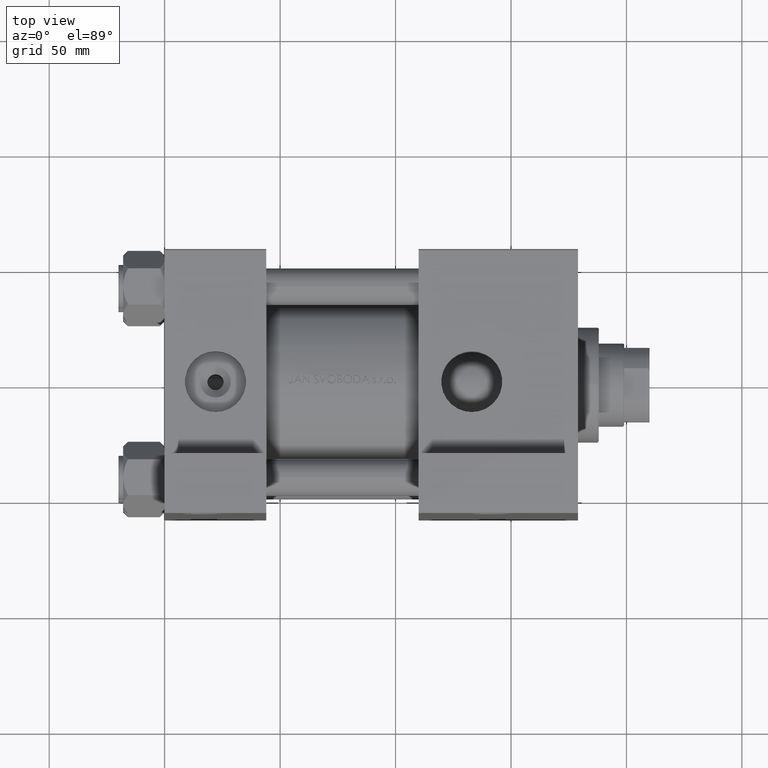
[diagram: clean part render]
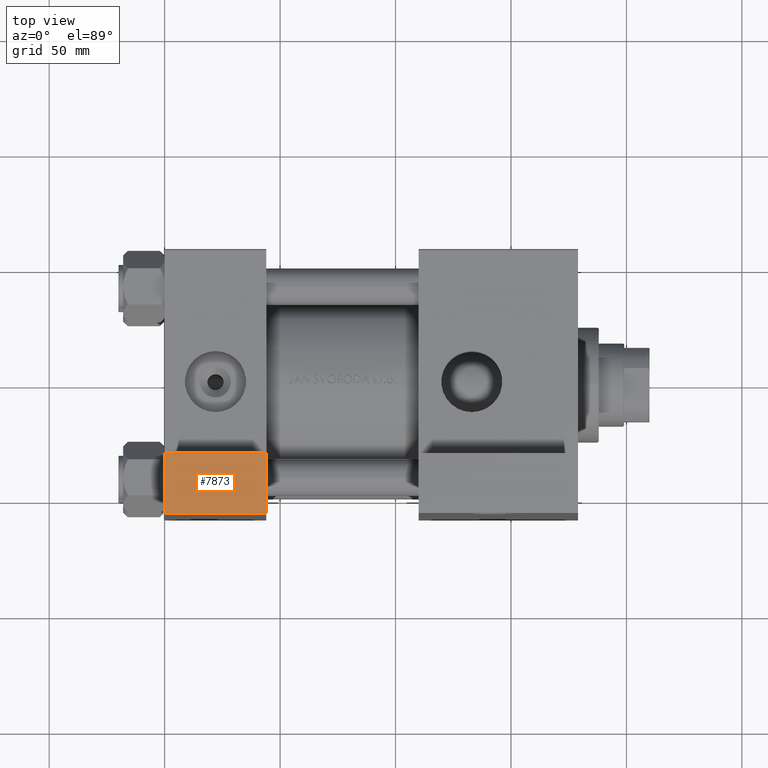
[diagram: same view with one face highlighted and labeled with its STEP entity id]
A machine part, top view. The second image highlights one B-rep face of the part: STEP entity #7873.
In plain terms, the highlighted planar face has unit normal (0, 0, 1).
Its self-contained STEP definition (entity closure, byte-faithful):
#1443 = CARTESIAN_POINT ( 'NONE',  ( 44.00000000000000000, -92.49999999999997158, 24.72277118748244362 ) ) ;
#2081 = DIRECTION ( 'NONE',  ( 1.000000000000000000, 0.000000000000000000, 0.000000000000000000 ) ) ;
#2254 = CARTESIAN_POINT ( 'NONE',  ( -4.696407624884288264E-16, -92.49999999999998579, -57.49999999999998579 ) ) ;
#5628 = VERTEX_POINT ( 'NONE', #29936 ) ;
#7785 = DIRECTION ( 'NONE',  ( 0.000000000000000000, -1.000000000000000000, 1.734723475976806601E-16 ) ) ;
#7873 = ADVANCED_FACE ( 'NONE', ( #33989 ), #15523, .T. ) ;
#8714 = LINE ( 'NONE', #20329, #27907 ) ;
#11474 = VECTOR ( 'NONE', #35762, 1000.000000000000000 ) ;
#11972 = EDGE_CURVE ( 'NONE', #16092, #5628, #19878, .T. ) ;
#12748 = EDGE_CURVE ( 'NONE', #36690, #16092, #16638, .T. ) ;
#15523 = PLANE ( 'NONE',  #16435 ) ;
#16038 = ORIENTED_EDGE ( 'NONE', *, *, #43814, .F. ) ;
#16092 = VERTEX_POINT ( 'NONE', #31820 ) ;
#16405 = CARTESIAN_POINT ( 'NONE',  ( -4.696407624884288264E-16, -92.49999999999998579, -31.49999999999997158 ) ) ;
#16435 = AXIS2_PLACEMENT_3D ( 'NONE', #22572, #7785, #29856 ) ;
#16638 = LINE ( 'NONE', #16405, #28952 ) ;
#19878 = LINE ( 'NONE', #1443, #47554 ) ;
#20329 = CARTESIAN_POINT ( 'NONE',  ( -4.696407624884288264E-16, -92.49999999999997158, 24.72277118748244362 ) ) ;
#22572 = CARTESIAN_POINT ( 'NONE',  ( -4.696407624884288264E-16, -92.49999999999997158, 24.72277118748244362 ) ) ;
#22727 = CARTESIAN_POINT ( 'NONE',  ( -4.696407624884288264E-16, -92.49999999999998579, -31.49999999999997158 ) ) ;
#26891 = CARTESIAN_POINT ( 'NONE',  ( -4.696407624884288264E-16, -92.49999999999998579, -57.49999999999998579 ) ) ;
#27907 = VECTOR ( 'NONE', #39029, 1000.000000000000000 ) ;
#28952 = VECTOR ( 'NONE', #2081, 1000.000000000000000 ) ;
#29856 = DIRECTION ( 'NONE',  ( 0.000000000000000000, -1.734723475976806601E-16, -1.000000000000000000 ) ) ;
#29936 = CARTESIAN_POINT ( 'NONE',  ( 44.00000000000000000, -92.49999999999998579, -57.49999999999998579 ) ) ;
#31700 = EDGE_CURVE ( 'NONE', #36690, #35375, #8714, .T. ) ;
#31820 = CARTESIAN_POINT ( 'NONE',  ( 44.00000000000000000, -92.49999999999998579, -31.49999999999997158 ) ) ;
#33989 = FACE_OUTER_BOUND ( 'NONE', #39833, .T. ) ;
#34117 = ORIENTED_EDGE ( 'NONE', *, *, #11972, .F. ) ;
#35375 = VERTEX_POINT ( 'NONE', #26891 ) ;
#35430 = DIRECTION ( 'NONE',  ( 0.000000000000000000, -1.734723475976806601E-16, -1.000000000000000000 ) ) ;
#35762 = DIRECTION ( 'NONE',  ( -1.000000000000000000, -0.000000000000000000, -0.000000000000000000 ) ) ;
#36690 = VERTEX_POINT ( 'NONE', #22727 ) ;
#39029 = DIRECTION ( 'NONE',  ( 0.000000000000000000, -1.734723475976806601E-16, -1.000000000000000000 ) ) ;
#39833 = EDGE_LOOP ( 'NONE', ( #40697, #47646, #16038, #34117 ) ) ;
#40697 = ORIENTED_EDGE ( 'NONE', *, *, #12748, .F. ) ;
#41591 = LINE ( 'NONE', #2254, #11474 ) ;
#43814 = EDGE_CURVE ( 'NONE', #5628, #35375, #41591, .T. ) ;
#47554 = VECTOR ( 'NONE', #35430, 1000.000000000000000 ) ;
#47646 = ORIENTED_EDGE ( 'NONE', *, *, #31700, .T. ) ;